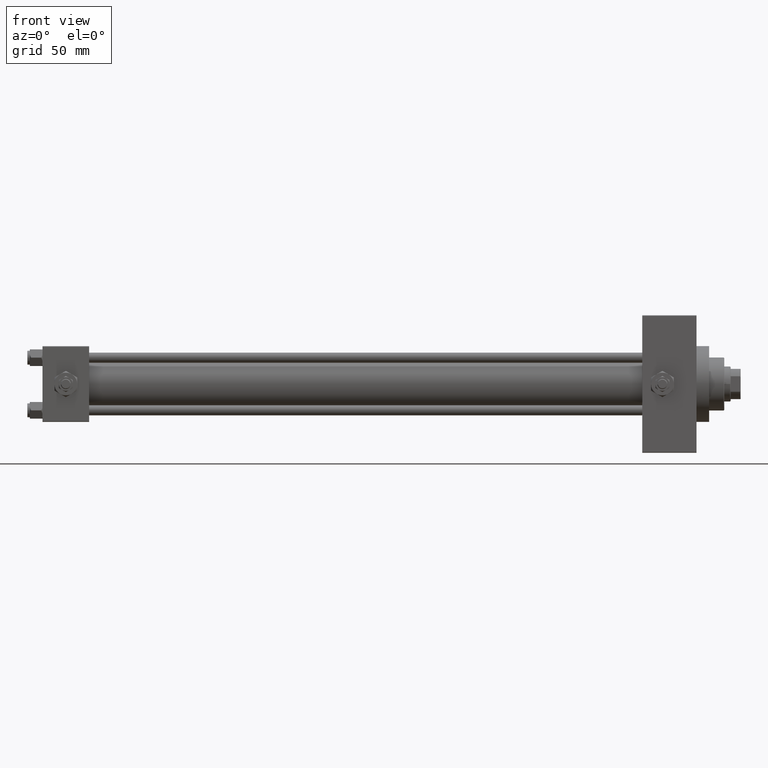
[diagram: clean part render]
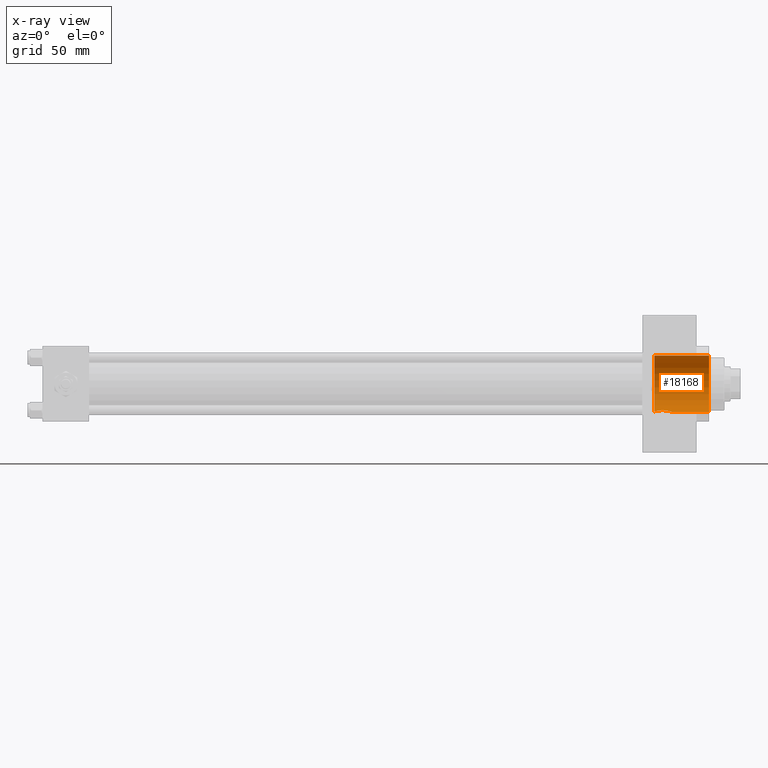
[diagram: x-ray — body ghosted, one internal face saturated and labeled with its STEP entity id]
A machine part, front view, then the same camera in x-ray: the body is ghosted and one INTERNAL B-rep face — a face not visible from any outside direction — is saturated and labeled: STEP entity #18168.
In plain terms, the highlighted cylindrical surface (edge-blend (fillet) strip) has radius 22.5 mm, axis along (1, 0, 0).
Its self-contained STEP definition (entity closure, byte-faithful):
#132 = CARTESIAN_POINT ( 'NONE',  ( 493.5539892842377299, 7.939907640306470782, -21.05309719302650251 ) ) ;
#531 = ORIENTED_EDGE ( 'NONE', *, *, #43373, .F. ) ;
#1385 = CARTESIAN_POINT ( 'NONE',  ( 484.7400000000000091, 0.000000000000000000, -22.50000000000000355 ) ) ;
#2148 = ORIENTED_EDGE ( 'NONE', *, *, #7213, .T. ) ;
#2922 = CARTESIAN_POINT ( 'NONE',  ( 499.3299999999999272, 0.4231877007468762275, -22.50000000000000711 ) ) ;
#3337 = LINE ( 'NONE', #26031, #12010 ) ;
#3401 = CARTESIAN_POINT ( 'NONE',  ( 497.3424573050792787, 5.416427024620324993, -21.84059232546010776 ) ) ;
#3893 = CARTESIAN_POINT ( 'NONE',  ( 495.8013027033389335, 6.819764595693570186, -21.44323695491642923 ) ) ;
#6925 = AXIS2_PLACEMENT_3D ( 'NONE', #22861, #26585, #30569 ) ;
#7154 = CARTESIAN_POINT ( 'NONE',  ( 499.3299999999999841, -1.030804544852296126E-23, -22.50000000000000355 ) ) ;
#7213 = EDGE_CURVE ( 'NONE', #21592, #8388, #36043, .T. ) ;
#8388 = VERTEX_POINT ( 'NONE', #25792 ) ;
#8875 = DIRECTION ( 'NONE',  ( 1.000000000000000000, -0.000000000000000000, -0.000000000000000000 ) ) ;
#10370 = ORIENTED_EDGE ( 'NONE', *, *, #39566, .F. ) ;
#10402 = CARTESIAN_POINT ( 'NONE',  ( 487.5704381520594097, 7.594124707910303584, -21.17986642145407217 ) ) ;
#11065 = VERTEX_POINT ( 'NONE', #21284 ) ;
#11367 = CARTESIAN_POINT ( 'NONE',  ( 499.2970606556256143, 0.8528513471424505887, -22.48774533044546331 ) ) ;
#11619 = CARTESIAN_POINT ( 'NONE',  ( 491.8956073634821564, 8.292491378959189419, -20.91614820275088604 ) ) ;
#12010 = VECTOR ( 'NONE', #48930, 1000.000000000000000 ) ;
#12752 = ORIENTED_EDGE ( 'NONE', *, *, #33398, .T. ) ;
#13322 = CARTESIAN_POINT ( 'NONE',  ( 484.7400000000000091, 5.495570943951198828, -21.81854028114620192 ) ) ;
#13617 = AXIS2_PLACEMENT_3D ( 'NONE', #31588, #23124, #35070 ) ;
#14635 = CARTESIAN_POINT ( 'NONE',  ( 494.7236659699605070, 7.463206326023634318, -21.22729274660728294 ) ) ;
#14876 = CARTESIAN_POINT ( 'NONE',  ( 490.6299664090158217, 8.332541612595186109, -20.90025414590696329 ) ) ;
#15106 = CARTESIAN_POINT ( 'NONE',  ( 488.1484526623327724, 7.837887213631892003, -21.09140609030396618 ) ) ;
#15355 = CARTESIAN_POINT ( 'NONE',  ( 493.1507344276369054, 8.058714127658497262, -21.00752502832085611 ) ) ;
#15669 = CIRCLE ( 'NONE', #6925, 22.50000000000000355 ) ;
#16577 = VECTOR ( 'NONE', #8875, 1000.000000000000000 ) ;
#17101 = LINE ( 'NONE', #1385, #16577 ) ;
#17884 = CARTESIAN_POINT ( 'NONE',  ( 484.7400000000000091, 5.495570943951198828, -21.81854028114620192 ) ) ;
#18168 = ADVANCED_FACE ( 'NONE', ( #25239 ), #48151, .F. ) ;
#18608 = CARTESIAN_POINT ( 'NONE',  ( 489.7869814485030702, 8.252076137422097446, -20.93215498966412724 ) ) ;
#19633 = CARTESIAN_POINT ( 'NONE',  ( 528.0000000000000000, 2.755455298081545172E-15, 22.50000000000000355 ) ) ;
#20720 = VERTEX_POINT ( 'NONE', #19633 ) ;
#21284 = CARTESIAN_POINT ( 'NONE',  ( 484.7400000000000091, 2.755455298081545172E-15, 22.50000000000000355 ) ) ;
#21592 = VERTEX_POINT ( 'NONE', #13322 ) ;
#22861 = CARTESIAN_POINT ( 'NONE',  ( 528.0000000000000000, 0.000000000000000000, 0.000000000000000000 ) ) ;
#23124 = DIRECTION ( 'NONE',  ( 1.000000000000000000, 0.000000000000000000, 0.000000000000000000 ) ) ;
#23183 = CIRCLE ( 'NONE', #13617, 22.50000000000000355 ) ;
#25239 = FACE_OUTER_BOUND ( 'NONE', #41019, .T. ) ;
#25482 = DIRECTION ( 'NONE',  ( 0.000000000000000000, 0.000000000000000000, -1.000000000000000000 ) ) ;
#25792 = CARTESIAN_POINT ( 'NONE',  ( 499.3299999999999841, -1.030804544852296126E-23, -22.50000000000000355 ) ) ;
#26031 = CARTESIAN_POINT ( 'NONE',  ( 484.7400000000000091, 2.755455298081545172E-15, 22.50000000000000355 ) ) ;
#26444 = EDGE_CURVE ( 'NONE', #44915, #20720, #15669, .T. ) ;
#26585 = DIRECTION ( 'NONE',  ( 1.000000000000000000, 0.000000000000000000, 0.000000000000000000 ) ) ;
#26819 = CARTESIAN_POINT ( 'NONE',  ( 499.1676325783013795, 1.690665256436935548, -22.44031409000265498 ) ) ;
#29225 = CARTESIAN_POINT ( 'NONE',  ( 484.7400000000000091, 0.000000000000000000, 0.000000000000000000 ) ) ;
#29340 = CARTESIAN_POINT ( 'NONE',  ( 486.8222632032724277, 7.209673137828938039, -21.31393839863303796 ) ) ;
#30310 = CARTESIAN_POINT ( 'NONE',  ( 499.0718577897082469, 2.099993510347367920, -22.40540423522786284 ) ) ;
#30569 = DIRECTION ( 'NONE',  ( 0.000000000000000000, 0.000000000000000000, -1.000000000000000000 ) ) ;
#31588 = CARTESIAN_POINT ( 'NONE',  ( 484.7400000000000091, 0.000000000000000000, 0.000000000000000000 ) ) ;
#33074 = CARTESIAN_POINT ( 'NONE',  ( 485.2948812944180759, 6.127635735486613555, -21.65933820537498633 ) ) ;
#33398 = EDGE_CURVE ( 'NONE', #8388, #44915, #17101, .T. ) ;
#33562 = CARTESIAN_POINT ( 'NONE',  ( 498.8200576936606581, 2.900268709722565674, -22.31592599689449941 ) ) ;
#34044 = CARTESIAN_POINT ( 'NONE',  ( 498.2906412269954899, 4.051397720758683541, -22.13557804199978918 ) ) ;
#34284 = CARTESIAN_POINT ( 'NONE',  ( 488.5452642440800446, 7.971261652067494374, -21.04094346462039411 ) ) ;
#35070 = DIRECTION ( 'NONE',  ( 0.000000000000000000, 0.000000000000000000, -1.000000000000000000 ) ) ;
#36043 = B_SPLINE_CURVE_WITH_KNOTS ( 'NONE', 3,
 ( #17884, #33074, #48277, #29340, #40799, #44527, #10402, #15106, #34284, #48760, #18608, #14876, #37786, #11619, #45506, #15355, #132, #49000, #14635, #44780, #3893, #42020, #41527, #3401, #48521, #49239, #34044, #37305, #33562, #30310, #26819, #11367, #2922, #7154 ),
 .UNSPECIFIED., .F., .F.,
 ( 4, 2, 2, 2, 2, 2, 2, 2, 2, 2, 2, 2, 2, 2, 2, 2, 4 ),
 ( 0.000000000000000000, 0.002532697760304471711, 0.003165872200380625417, 0.003799046640456779558, 0.005065395520608936483, 0.006331744400761093843, 0.007598093280913251202, 0.008864442161065407694, 0.01013079104121756419, 0.01139713992136972068, 0.01266348880152187890, 0.01392983768167403540, 0.01519618656182619362, 0.01646253544197835011, 0.01772888432213050661, 0.01899523320228266310, 0.02026158208243481959 ),
 .UNSPECIFIED. ) ;
#37305 = CARTESIAN_POINT ( 'NONE',  ( 498.6630236205750748, 3.293226682608799916, -22.26100394775997771 ) ) ;
#37786 = CARTESIAN_POINT ( 'NONE',  ( 491.0516919710246384, 8.340554763309672381, -20.89702885938055843 ) ) ;
#39566 = EDGE_CURVE ( 'NONE', #11065, #20720, #3337, .T. ) ;
#40365 = AXIS2_PLACEMENT_3D ( 'NONE', #29225, #44413, #25482 ) ;
#40799 = CARTESIAN_POINT ( 'NONE',  ( 487.0068402018593474, 7.313530319584645945, -21.27845421415785410 ) ) ;
#41019 = EDGE_LOOP ( 'NONE', ( #10370, #531, #2148, #12752, #48070 ) ) ;
#41527 = CARTESIAN_POINT ( 'NONE',  ( 496.7669506482355928, 6.025506335620723242, -21.68046190096923809 ) ) ;
#42020 = CARTESIAN_POINT ( 'NONE',  ( 496.4564057214796549, 6.307878676097820048, -21.59935801946436129 ) ) ;
#43373 = EDGE_CURVE ( 'NONE', #21592, #11065, #23183, .T. ) ;
#44413 = DIRECTION ( 'NONE',  ( 1.000000000000000000, -0.000000000000000000, -0.000000000000000000 ) ) ;
#44527 = CARTESIAN_POINT ( 'NONE',  ( 487.3806461157529952, 7.505553168791550434, -21.21148300119393326 ) ) ;
#44780 = CARTESIAN_POINT ( 'NONE',  ( 495.4551373660956983, 7.051020349556438305, -21.36774480484794481 ) ) ;
#44915 = VERTEX_POINT ( 'NONE', #45277 ) ;
#45277 = CARTESIAN_POINT ( 'NONE',  ( 528.0000000000000000, 0.000000000000000000, -22.50000000000000355 ) ) ;
#45506 = CARTESIAN_POINT ( 'NONE',  ( 492.3216909083367909, 8.235391011504251679, -20.93889481549789267 ) ) ;
#48070 = ORIENTED_EDGE ( 'NONE', *, *, #26444, .T. ) ;
#48151 = CYLINDRICAL_SURFACE ( 'NONE', #40365, 22.50000000000000355 ) ;
#48277 = CARTESIAN_POINT ( 'NONE',  ( 485.9286092801891073, 6.661339213704198237, -21.49628500278262422 ) ) ;
#48521 = CARTESIAN_POINT ( 'NONE',  ( 497.6044044703109535, 5.093465402724864255, -21.91867937644421360 ) ) ;
#48760 = CARTESIAN_POINT ( 'NONE',  ( 489.3628503782895223, 8.178415560073172941, -20.96129368941302218 ) ) ;
#48930 = DIRECTION ( 'NONE',  ( 1.000000000000000000, -0.000000000000000000, -0.000000000000000000 ) ) ;
#49000 = CARTESIAN_POINT ( 'NONE',  ( 494.3390036589864280, 7.643039262353317653, -21.16267907401477544 ) ) ;
#49239 = CARTESIAN_POINT ( 'NONE',  ( 498.0784950564939209, 4.410947285040759169, -22.06616050573156329 ) ) ;